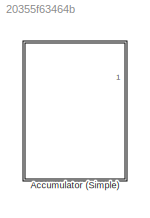
MODEL slx_20355f63464b
KIND library
CONFIG AbsTol = auto
CONFIG EnableMultiTasking = off
CONFIG FixedStep = auto
CONFIG MaxStep = auto
CONFIG MinStep = auto
CONFIG RelTol = 1e-3
CONFIG SampleTimeConstraint = Unconstrained
CONFIG Solver = VariableStepAuto
CONFIG SolverName = VariableStepAuto
CONFIG StartTime = 0.0
CONFIG StopTime = 10.0
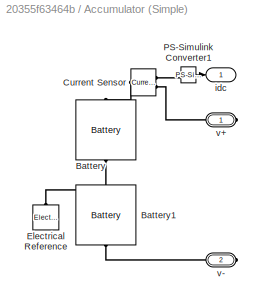
BLOCK [SubSystem] Accumulator (Simple)
  Ports = [0, 1, 0, 0, 0, 0, 2]
  RequestExecContextInheritance = off
BLOCK [Reference] Accumulator (Simple)/Battery  REF=ee_lib/Sources/Battery
  Ports = [0, 0, 0, 0, 0, 1, 1]
  SourceBlock = ee_lib/Sources/Battery
  SourceProductBaseCode = PS
  SourceProductName = Simscape Electrical
  SourceType = Battery
BLOCK [Reference] Accumulator (Simple)/Battery1  REF=ee_lib/Sources/Battery
  Ports = [0, 0, 0, 0, 0, 1, 1]
  SourceBlock = ee_lib/Sources/Battery
  SourceProductBaseCode = PS
  SourceProductName = Simscape Electrical
  SourceType = Battery
BLOCK [Reference] Accumulator (Simple)/Current Sensor  REF=fl_lib/Electrical/Electrical Sensors/Current Sensor
  Ports = [0, 0, 0, 0, 0, 1, 2]
  SourceBlock = fl_lib/Electrical/Electrical Sensors/Current Sensor
  SourceProductBaseCode = SS
  SourceProductName = Simscape
  SourceType = Current Sensor
BLOCK [Reference] Accumulator (Simple)/Electrical Reference  REF=fl_lib/Electrical/Electrical Elements/Electrical Reference
  Ports = [0, 0, 0, 0, 0, 1]
  SourceBlock = fl_lib/Electrical/Electrical Elements/Electrical Reference
  SourceProductName = Foundation Library
  SourceType = Electrical Reference
BLOCK [Reference] Accumulator (Simple)/PS-Simulink Converter1  REF=nesl_utility/PS-Simulink
Converter
  Ports = [0, 1, 0, 0, 0, 1]
  SourceBlock = nesl_utility/PS-Simulink\nConverter
  SourceProductBaseCode = SS
  SourceProductName = Simscape
  SourceType = PS-Simulink\nConverter
BLOCK [Outport] Accumulator (Simple)/idc
  IconDisplay = Port number
BLOCK [PMIOPort] Accumulator (Simple)/v+
  Side = Right
BLOCK [PMIOPort] Accumulator (Simple)/v-
  Port = 2
  Side = Right
LINE Accumulator (Simple)/PS-Simulink Converter1:1 -> Accumulator (Simple)/idc:1
PNET net1: Accumulator (Simple)/Battery1:LConn1 -- Accumulator (Simple)/Battery:RConn1 -- Accumulator (Simple)/Electrical Reference:LConn1
PLINE Accumulator (Simple)/Battery1:RConn1 -- Accumulator (Simple)/v-:RConn1
PLINE Accumulator (Simple)/Battery:LConn1 -- Accumulator (Simple)/Current Sensor:LConn1
PLINE Accumulator (Simple)/Current Sensor:RConn1 -- Accumulator (Simple)/PS-Simulink Converter1:LConn1
PLINE Accumulator (Simple)/Current Sensor:RConn2 -- Accumulator (Simple)/v+:RConn1
note: PNET lines group multi-terminal physical nets as a canonical sorted terminal list (undirected conserving connections); 2-terminal nets keep the pairwise PLINE form
